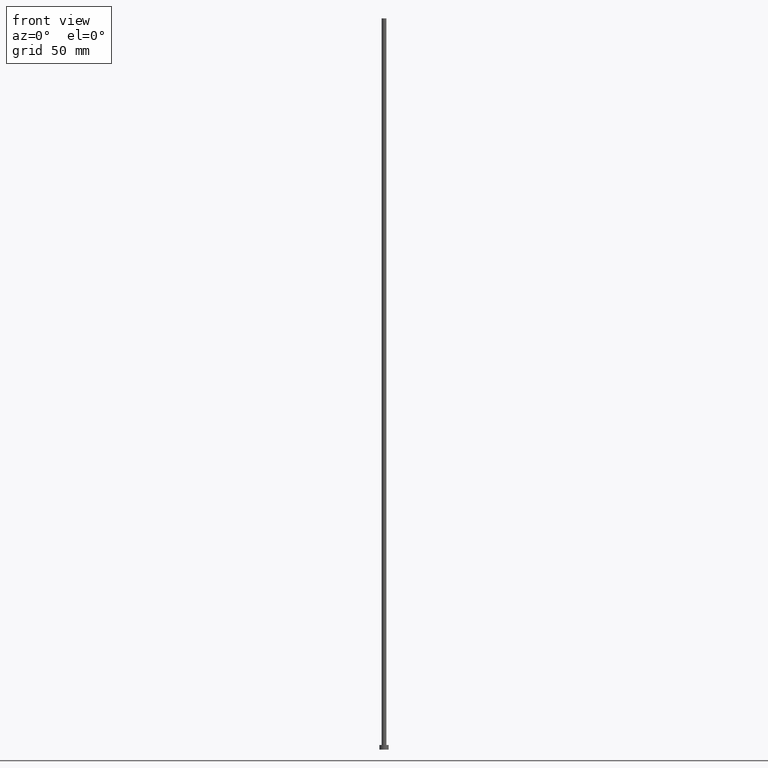
[diagram: clean part render]
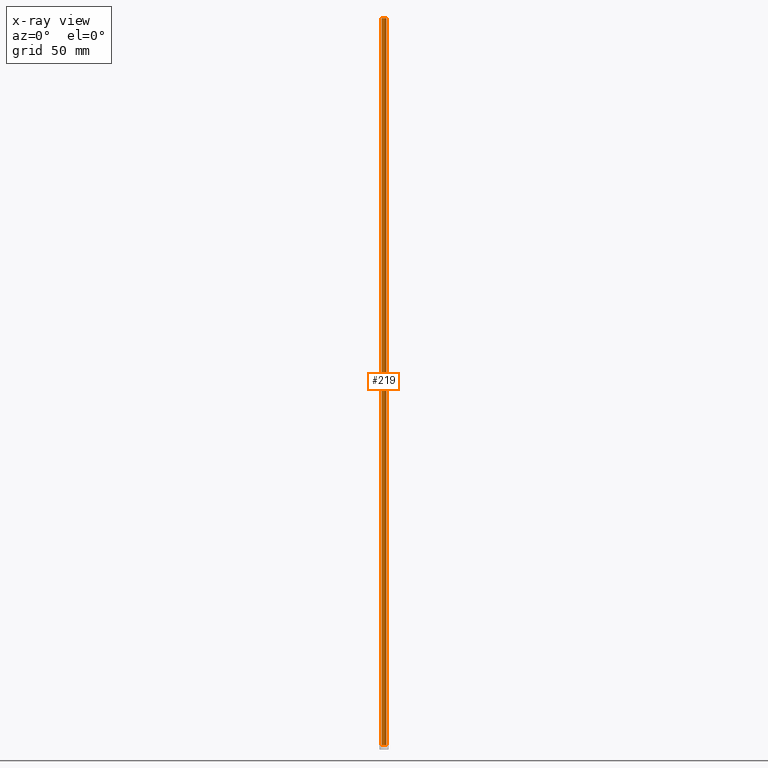
[diagram: x-ray — body ghosted, one internal face saturated and labeled with its STEP entity id]
A machine part, front view, then the same camera in x-ray: the body is ghosted and one INTERNAL B-rep face — a face not visible from any outside direction — is saturated and labeled: STEP entity #219.
In plain terms, the highlighted cylindrical surface (edge-blend (fillet) strip) has radius 1 mm, axis along (-0, -0, -1).
Its self-contained STEP definition (entity closure, byte-faithful):
#1 = DIRECTION ( 'NONE',  ( -0.000000000000000000, -0.000000000000000000, -1.000000000000000000 ) ) ;
#3 = CARTESIAN_POINT ( 'NONE',  ( 1.000000000000000000, 1.224646799147353207E-16, 315.0000000000000000 ) ) ;
#24 = CARTESIAN_POINT ( 'NONE',  ( 0.000000000000000000, 0.000000000000000000, 2.000000000000000000 ) ) ;
#26 = DIRECTION ( 'NONE',  ( 1.000000000000000000, 0.000000000000000000, 0.000000000000000000 ) ) ;
#32 = CARTESIAN_POINT ( 'NONE',  ( 1.000000000000000000, 1.224646799147353207E-16, 2.000000000000000000 ) ) ;
#34 = LINE ( 'NONE', #202, #45 ) ;
#45 = VECTOR ( 'NONE', #81, 1000.000000000000000 ) ;
#53 = CIRCLE ( 'NONE', #235, 1.000000000000000000 ) ;
#57 = CARTESIAN_POINT ( 'NONE',  ( 1.000000000000000000, 1.224646799147353207E-16, 315.0000000000000000 ) ) ;
#67 = VERTEX_POINT ( 'NONE', #32 ) ;
#73 = CARTESIAN_POINT ( 'NONE',  ( 0.000000000000000000, 0.000000000000000000, 315.0000000000000000 ) ) ;
#76 = DIRECTION ( 'NONE',  ( 0.000000000000000000, 0.000000000000000000, 1.000000000000000000 ) ) ;
#77 = EDGE_CURVE ( 'NONE', #222, #241, #34, .T. ) ;
#81 = DIRECTION ( 'NONE',  ( -0.000000000000000000, -0.000000000000000000, -1.000000000000000000 ) ) ;
#84 = ORIENTED_EDGE ( 'NONE', *, *, #213, .T. ) ;
#95 = DIRECTION ( 'NONE',  ( -0.000000000000000000, -0.000000000000000000, -1.000000000000000000 ) ) ;
#103 = CARTESIAN_POINT ( 'NONE',  ( -1.000000000000000000, 0.000000000000000000, 2.000000000000000000 ) ) ;
#133 = DIRECTION ( 'NONE',  ( -1.000000000000000000, 0.000000000000000000, 0.000000000000000000 ) ) ;
#139 = EDGE_LOOP ( 'NONE', ( #251, #187, #84, #178 ) ) ;
#146 = DIRECTION ( 'NONE',  ( 1.000000000000000000, 0.000000000000000000, 0.000000000000000000 ) ) ;
#168 = LINE ( 'NONE', #3, #203 ) ;
#171 = FACE_OUTER_BOUND ( 'NONE', #139, .T. ) ;
#172 = AXIS2_PLACEMENT_3D ( 'NONE', #24, #76, #26 ) ;
#176 = EDGE_CURVE ( 'NONE', #227, #67, #168, .T. ) ;
#178 = ORIENTED_EDGE ( 'NONE', *, *, #77, .F. ) ;
#182 = CARTESIAN_POINT ( 'NONE',  ( -1.000000000000000000, 0.000000000000000000, 315.0000000000000000 ) ) ;
#184 = EDGE_CURVE ( 'NONE', #227, #222, #53, .T. ) ;
#185 = CIRCLE ( 'NONE', #172, 1.000000000000000000 ) ;
#187 = ORIENTED_EDGE ( 'NONE', *, *, #176, .T. ) ;
#189 = DIRECTION ( 'NONE',  ( 0.000000000000000000, 0.000000000000000000, 1.000000000000000000 ) ) ;
#190 = CARTESIAN_POINT ( 'NONE',  ( 0.000000000000000000, 0.000000000000000000, 315.0000000000000000 ) ) ;
#202 = CARTESIAN_POINT ( 'NONE',  ( -1.000000000000000000, 0.000000000000000000, 315.0000000000000000 ) ) ;
#203 = VECTOR ( 'NONE', #95, 1000.000000000000000 ) ;
#213 = EDGE_CURVE ( 'NONE', #67, #241, #185, .T. ) ;
#219 = ADVANCED_FACE ( 'NONE', ( #171 ), #255, .T. ) ;
#222 = VERTEX_POINT ( 'NONE', #182 ) ;
#223 = AXIS2_PLACEMENT_3D ( 'NONE', #190, #1, #133 ) ;
#227 = VERTEX_POINT ( 'NONE', #57 ) ;
#235 = AXIS2_PLACEMENT_3D ( 'NONE', #73, #189, #146 ) ;
#241 = VERTEX_POINT ( 'NONE', #103 ) ;
#251 = ORIENTED_EDGE ( 'NONE', *, *, #184, .F. ) ;
#255 = CYLINDRICAL_SURFACE ( 'NONE', #223, 1.000000000000000000 ) ;